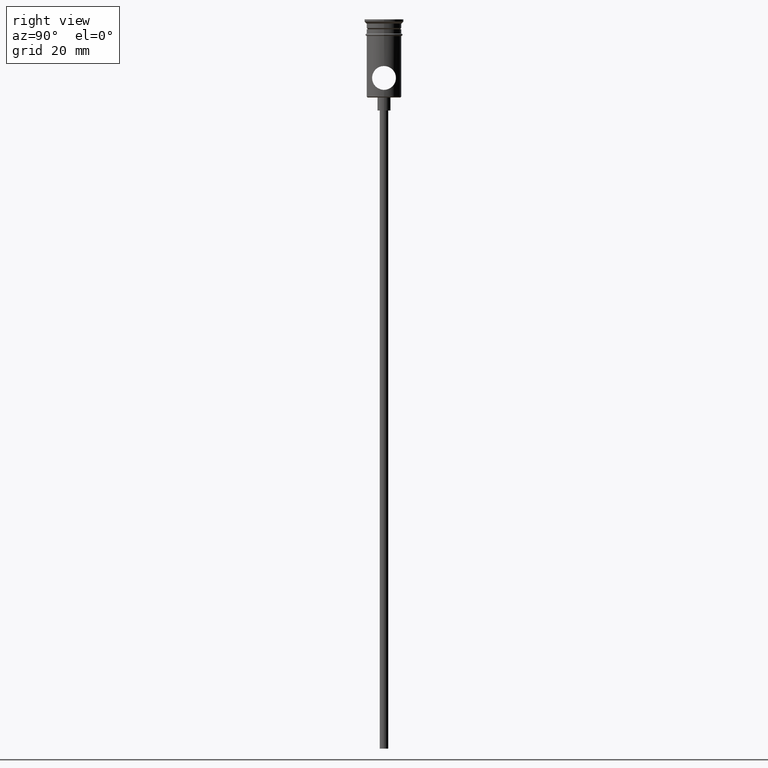
[diagram: clean part render]
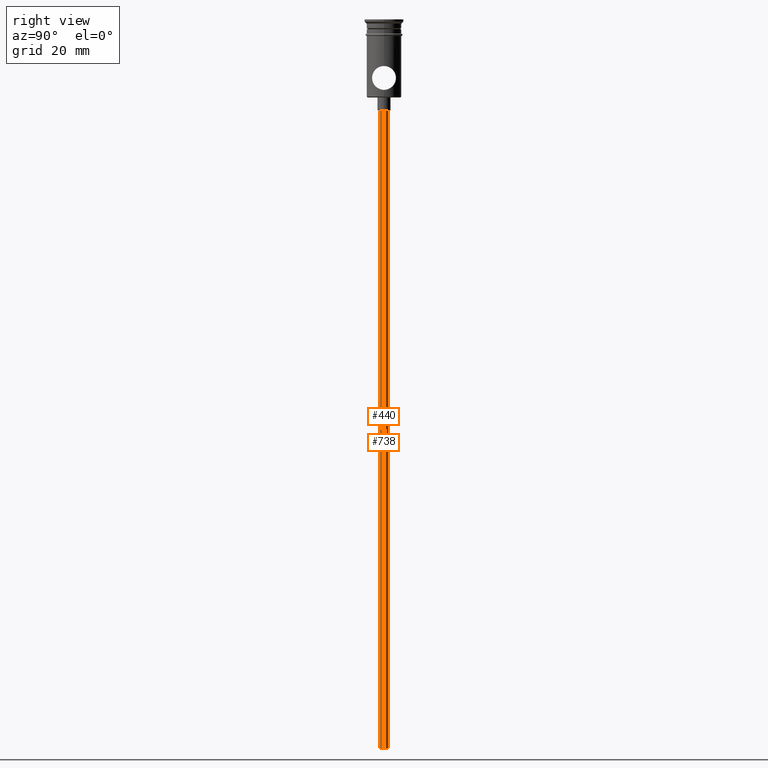
[diagram: same view with one multi-face feature highlighted, each face labeled with its STEP entity id]
A machine part, right view. The highlighted faces form ONE feature: a constant-radius fillet chain: 2 tangent blend faces with common blend radius 1 mm. The faces share edges in the B-rep.
Their STEP definitions:
[1] entity #440 (Cylinder):
#1 = VERTEX_POINT ( 'NONE', #20 ) ;
#5 = EDGE_CURVE ( 'NONE', #1, #734, #1085, .T. ) ;
#20 = CARTESIAN_POINT ( 'NONE',  ( 0.9999999999999997780, 0.000000000000000000, -167.9999999999999716 ) ) ;
#57 = ORIENTED_EDGE ( 'NONE', *, *, #89, .F. ) ;
#89 = EDGE_CURVE ( 'NONE', #1, #504, #387, .T. ) ;
#110 = DIRECTION ( 'NONE',  ( -1.000000000000000000, 0.000000000000000000, 0.000000000000000000 ) ) ;
#113 = ORIENTED_EDGE ( 'NONE', *, *, #1295, .F. ) ;
#178 = AXIS2_PLACEMENT_3D ( 'NONE', #1358, #1256, #179 ) ;
#179 = DIRECTION ( 'NONE',  ( -1.000000000000000000, 0.000000000000000000, 0.000000000000000000 ) ) ;
#306 = DIRECTION ( 'NONE',  ( -0.000000000000000000, -0.000000000000000000, 1.000000000000000000 ) ) ;
#334 = LINE ( 'NONE', #1398, #715 ) ;
#387 = CIRCLE ( 'NONE', #178, 0.9999999999999997780 ) ;
#400 = DIRECTION ( 'NONE',  ( 1.000000000000000000, 0.000000000000000000, 0.000000000000000000 ) ) ;
#440 = ADVANCED_FACE ( 'NONE', ( #937 ), #1396, .T. ) ;
#504 = VERTEX_POINT ( 'NONE', #1261 ) ;
#532 = DIRECTION ( 'NONE',  ( 0.000000000000000000, 0.000000000000000000, -1.000000000000000000 ) ) ;
#608 = ORIENTED_EDGE ( 'NONE', *, *, #632, .T. ) ;
#615 = CARTESIAN_POINT ( 'NONE',  ( 0.000000000000000000, 0.000000000000000000, -167.9999999999999716 ) ) ;
#632 = EDGE_CURVE ( 'NONE', #734, #645, #1082, .T. ) ;
#645 = VERTEX_POINT ( 'NONE', #1171 ) ;
#701 = DIRECTION ( 'NONE',  ( -0.000000000000000000, -0.000000000000000000, 1.000000000000000000 ) ) ;
#715 = VECTOR ( 'NONE', #752, 1000.000000000000000 ) ;
#734 = VERTEX_POINT ( 'NONE', #1161 ) ;
#752 = DIRECTION ( 'NONE',  ( -0.000000000000000000, -0.000000000000000000, 1.000000000000000000 ) ) ;
#759 = CARTESIAN_POINT ( 'NONE',  ( 0.000000000000000000, 0.000000000000000000, -20.99999999999999645 ) ) ;
#790 = EDGE_LOOP ( 'NONE', ( #113, #57, #1292, #608 ) ) ;
#937 = FACE_OUTER_BOUND ( 'NONE', #790, .T. ) ;
#1017 = VECTOR ( 'NONE', #701, 1000.000000000000000 ) ;
#1041 = AXIS2_PLACEMENT_3D ( 'NONE', #615, #306, #400 ) ;
#1082 = CIRCLE ( 'NONE', #1218, 0.9999999999999997780 ) ;
#1085 = LINE ( 'NONE', #1368, #1017 ) ;
#1161 = CARTESIAN_POINT ( 'NONE',  ( 0.9999999999999997780, 0.000000000000000000, -20.99999999999999645 ) ) ;
#1171 = CARTESIAN_POINT ( 'NONE',  ( -0.9999999999999997780, 1.224646799147352961E-16, -20.99999999999999645 ) ) ;
#1218 = AXIS2_PLACEMENT_3D ( 'NONE', #759, #532, #110 ) ;
#1256 = DIRECTION ( 'NONE',  ( 0.000000000000000000, 0.000000000000000000, -1.000000000000000000 ) ) ;
#1261 = CARTESIAN_POINT ( 'NONE',  ( -0.9999999999999997780, 1.224646799147352961E-16, -167.9999999999999716 ) ) ;
#1292 = ORIENTED_EDGE ( 'NONE', *, *, #5, .T. ) ;
#1295 = EDGE_CURVE ( 'NONE', #504, #645, #334, .T. ) ;
#1358 = CARTESIAN_POINT ( 'NONE',  ( 0.000000000000000000, 0.000000000000000000, -167.9999999999999716 ) ) ;
#1368 = CARTESIAN_POINT ( 'NONE',  ( 0.9999999999999997780, 0.000000000000000000, -167.9999999999999716 ) ) ;
#1396 = CYLINDRICAL_SURFACE ( 'NONE', #1041, 0.9999999999999997780 ) ;
#1398 = CARTESIAN_POINT ( 'NONE',  ( -0.9999999999999997780, 1.224646799147352961E-16, -167.9999999999999716 ) ) ;
[2] entity #738 (Cylinder):
#1 = VERTEX_POINT ( 'NONE', #20 ) ;
#5 = EDGE_CURVE ( 'NONE', #1, #734, #1085, .T. ) ;
#20 = CARTESIAN_POINT ( 'NONE',  ( 0.9999999999999997780, 0.000000000000000000, -167.9999999999999716 ) ) ;
#40 = AXIS2_PLACEMENT_3D ( 'NONE', #590, #1137, #458 ) ;
#65 = CARTESIAN_POINT ( 'NONE',  ( 0.000000000000000000, 0.000000000000000000, -167.9999999999999716 ) ) ;
#72 = FACE_OUTER_BOUND ( 'NONE', #612, .T. ) ;
#73 = EDGE_CURVE ( 'NONE', #645, #734, #495, .T. ) ;
#189 = CYLINDRICAL_SURFACE ( 'NONE', #316, 0.9999999999999997780 ) ;
#316 = AXIS2_PLACEMENT_3D ( 'NONE', #65, #703, #834 ) ;
#334 = LINE ( 'NONE', #1398, #715 ) ;
#349 = ORIENTED_EDGE ( 'NONE', *, *, #5, .F. ) ;
#355 = ORIENTED_EDGE ( 'NONE', *, *, #1295, .T. ) ;
#458 = DIRECTION ( 'NONE',  ( -1.000000000000000000, 0.000000000000000000, 0.000000000000000000 ) ) ;
#495 = CIRCLE ( 'NONE', #640, 0.9999999999999997780 ) ;
#504 = VERTEX_POINT ( 'NONE', #1261 ) ;
#590 = CARTESIAN_POINT ( 'NONE',  ( 0.000000000000000000, 0.000000000000000000, -167.9999999999999716 ) ) ;
#606 = DIRECTION ( 'NONE',  ( -1.000000000000000000, 0.000000000000000000, 0.000000000000000000 ) ) ;
#612 = EDGE_LOOP ( 'NONE', ( #1354, #355, #828, #349 ) ) ;
#640 = AXIS2_PLACEMENT_3D ( 'NONE', #1038, #1349, #606 ) ;
#645 = VERTEX_POINT ( 'NONE', #1171 ) ;
#701 = DIRECTION ( 'NONE',  ( -0.000000000000000000, -0.000000000000000000, 1.000000000000000000 ) ) ;
#703 = DIRECTION ( 'NONE',  ( -0.000000000000000000, -0.000000000000000000, 1.000000000000000000 ) ) ;
#715 = VECTOR ( 'NONE', #752, 1000.000000000000000 ) ;
#734 = VERTEX_POINT ( 'NONE', #1161 ) ;
#738 = ADVANCED_FACE ( 'NONE', ( #72 ), #189, .T. ) ;
#752 = DIRECTION ( 'NONE',  ( -0.000000000000000000, -0.000000000000000000, 1.000000000000000000 ) ) ;
#781 = CIRCLE ( 'NONE', #40, 0.9999999999999997780 ) ;
#828 = ORIENTED_EDGE ( 'NONE', *, *, #73, .T. ) ;
#834 = DIRECTION ( 'NONE',  ( 1.000000000000000000, 0.000000000000000000, 0.000000000000000000 ) ) ;
#931 = EDGE_CURVE ( 'NONE', #504, #1, #781, .T. ) ;
#1017 = VECTOR ( 'NONE', #701, 1000.000000000000000 ) ;
#1038 = CARTESIAN_POINT ( 'NONE',  ( 0.000000000000000000, 0.000000000000000000, -20.99999999999999645 ) ) ;
#1085 = LINE ( 'NONE', #1368, #1017 ) ;
#1137 = DIRECTION ( 'NONE',  ( 0.000000000000000000, 0.000000000000000000, -1.000000000000000000 ) ) ;
#1161 = CARTESIAN_POINT ( 'NONE',  ( 0.9999999999999997780, 0.000000000000000000, -20.99999999999999645 ) ) ;
#1171 = CARTESIAN_POINT ( 'NONE',  ( -0.9999999999999997780, 1.224646799147352961E-16, -20.99999999999999645 ) ) ;
#1261 = CARTESIAN_POINT ( 'NONE',  ( -0.9999999999999997780, 1.224646799147352961E-16, -167.9999999999999716 ) ) ;
#1295 = EDGE_CURVE ( 'NONE', #504, #645, #334, .T. ) ;
#1349 = DIRECTION ( 'NONE',  ( 0.000000000000000000, 0.000000000000000000, -1.000000000000000000 ) ) ;
#1354 = ORIENTED_EDGE ( 'NONE', *, *, #931, .F. ) ;
#1368 = CARTESIAN_POINT ( 'NONE',  ( 0.9999999999999997780, 0.000000000000000000, -167.9999999999999716 ) ) ;
#1398 = CARTESIAN_POINT ( 'NONE',  ( -0.9999999999999997780, 1.224646799147352961E-16, -167.9999999999999716 ) ) ;